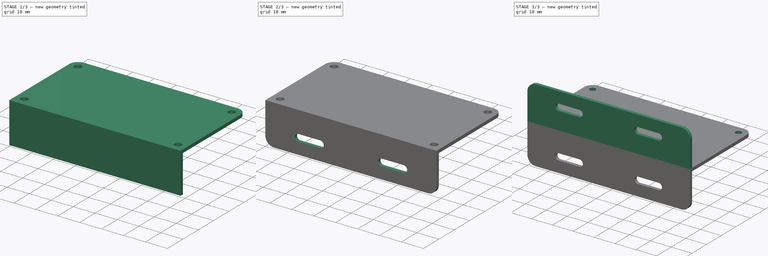
[diagram: build sequence overview — one tinted view per stage of 3, left to right]
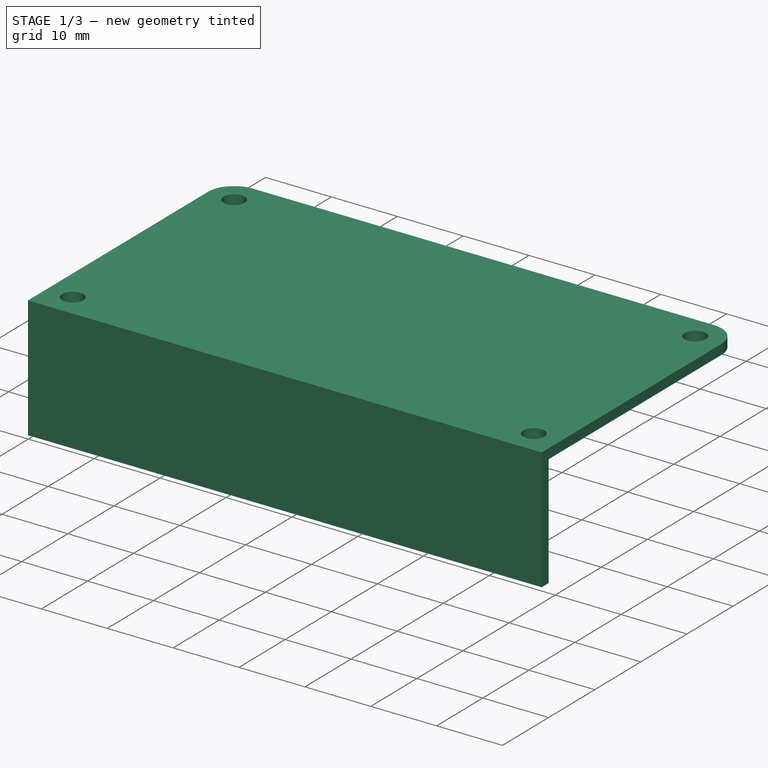
[diagram: stage 1 of 3 — iso view after this stage's code; geometry added in this stage tinted green]
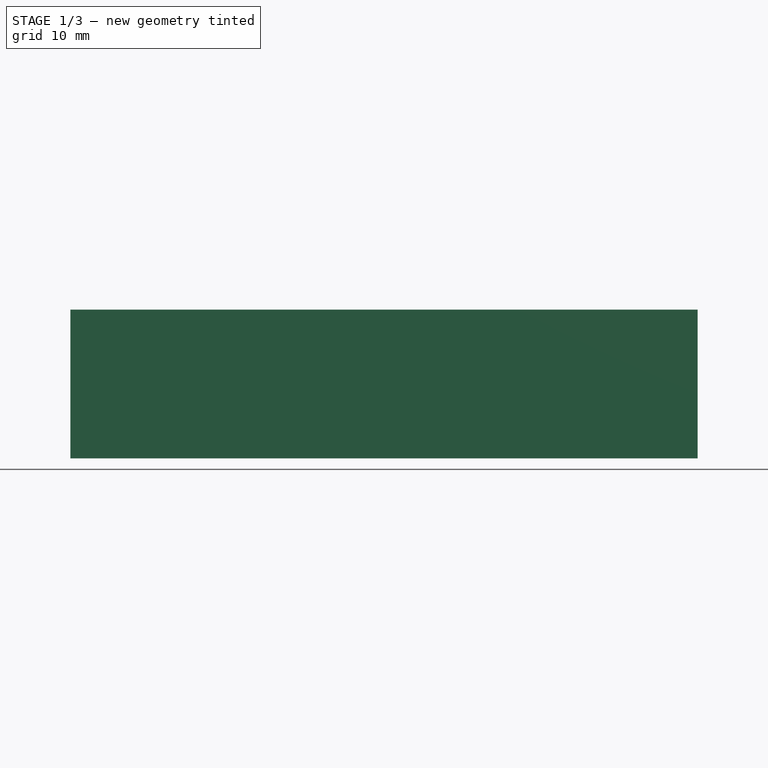
[diagram: stage 1 of 3 — front view after this stage's code; geometry added in this stage tinted green]
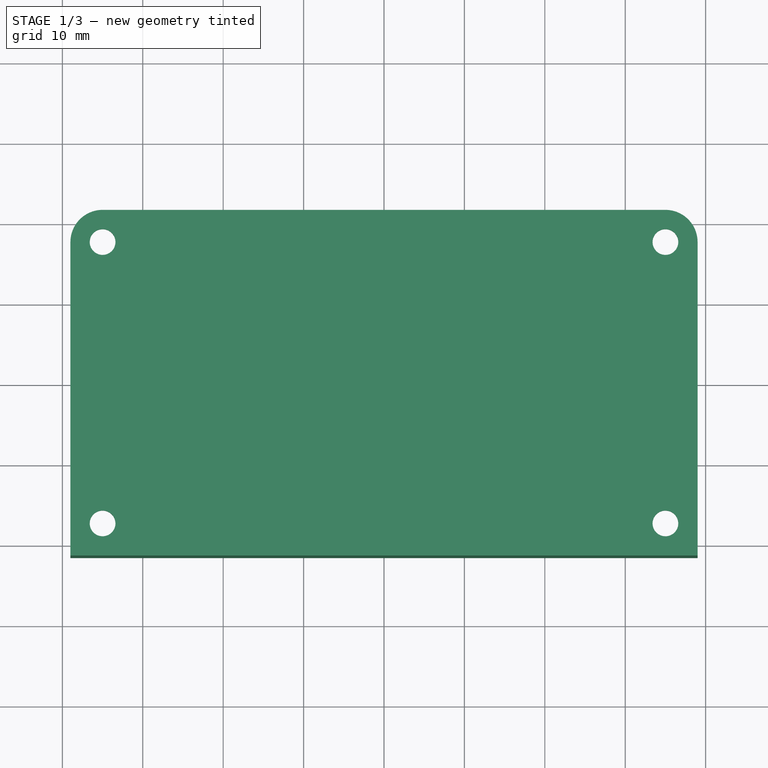
[diagram: stage 1 of 3 — top view after this stage's code; geometry added in this stage tinted green]
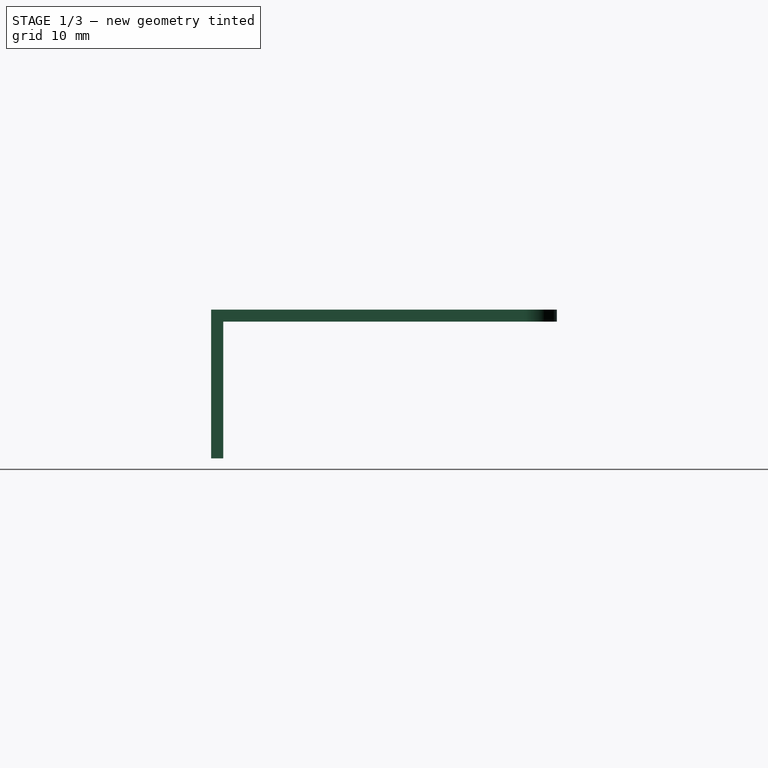
[diagram: stage 1 of 3 — right view after this stage's code; geometry added in this stage tinted green]
FCSTD DOCUMENT  (FreeCAD 0.20R29410 (Git))
Label: CapKorea
License: All rights reserved
LicenseURL: http://en.wikipedia.org/wiki/All_rights_reserved
objects: Part::Feature×16, Sketcher::SketchObject×5, PartDesign::Pad×4, App::Part×2, PartDesign::Body×2, App::FeaturePython×1, PartDesign::Pocket×1, PartDesign::Fillet×1, TechDraw::DrawSVGTemplate×1, TechDraw::DrawViewPart×1, TechDraw::DrawPage×1
note: 36 computed .brp shape members not serialized (recipe doc carries the construction recipe); baked Part::Feature solids carry a one-line shape summary decoded from their .brp

FEATURE [PartDesign::Body] Body  label="BodyFrontCap"
  Group = -> [Sketch004,Pad,Sketch009,Pad004]
  Origin = -> Origin
  Tip = -> Pad004
FEATURE [App::FeaturePython] WPProxy  # WARN: FeaturePython — macro-defined, semantics opaque (R4)
  Placement = pos=(0,0,1.5) rot=(-0.441748,-0.893536,-0.080318;0rad)
FEATURE [PartDesign::Pad] Pad007
  Direction = (0,0,1)
  Length = 1.5
  Length2 = 10
  Profile = -> Sketch006
  ReferenceAxis = -> Sketch006 [N_Axis]
  Type = 0
FEATURE [Sketcher::SketchObject] Sketch
  ExternalGeometry = -> [Pad007]
  FullyConstrained = true
  MapMode = 5
  Support = -> [XY_Plane001]
  sketch-geometry (4):
    g0: LineSegment StartX=-39 StartY=-21.5 StartZ=0 EndX=39 EndY=-21.5 EndZ=0
    g1: LineSegment StartX=39 StartY=-21.5 StartZ=0 EndX=39 EndY=-20 EndZ=0
    g2: LineSegment StartX=39 StartY=-20 StartZ=0 EndX=-39 EndY=-20 EndZ=0
    g3: LineSegment StartX=-39 StartY=-20 StartZ=0 EndX=-39 EndY=-21.5 EndZ=0
  constraints (11):
    c: Coincident(g0,g1)
    c: Coincident(g1,g2)
    c: Coincident(g2,g3)
    c: Coincident(g3,g0)
    c: Horizontal(g0)
    c: Horizontal(g2)
    c: Vertical(g1)
    c: Vertical(g3)
    c: Coincident(g0,g-3)
    c: PointOnObject(g1,g-4)
    c: DistanceY(g0,g1) = 1.5
FEATURE [PartDesign::Pad] Pad008
  BaseFeature = -> Pad007
  Direction = (0,0,1)
  Length = 17
  Length2 = 10
  Profile = -> Sketch
  ReferenceAxis = -> Sketch [N_Axis]
  Reversed = true
  Type = 0
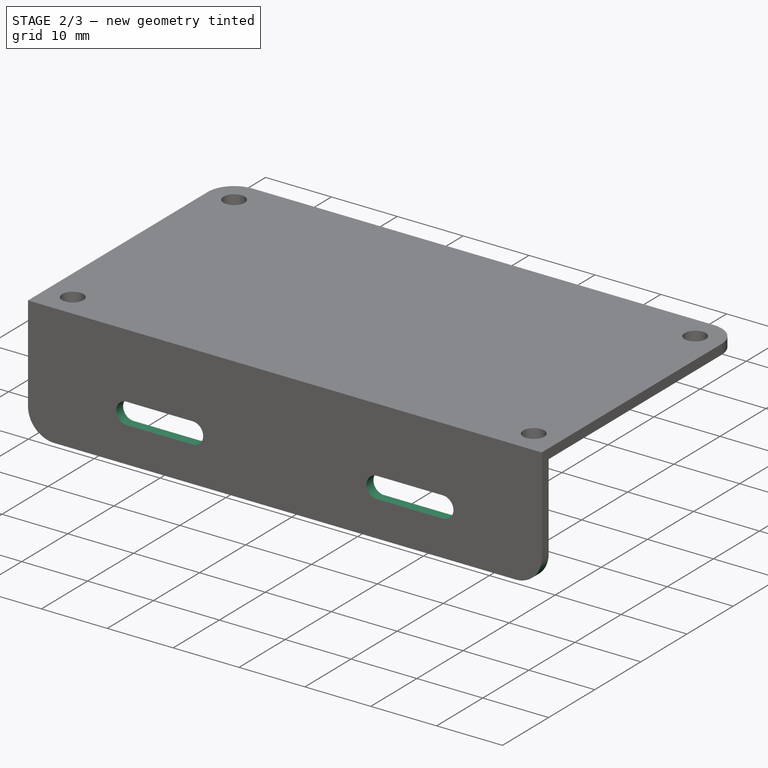
[diagram: stage 2 of 3 — iso view after this stage's code; geometry added in this stage tinted green]
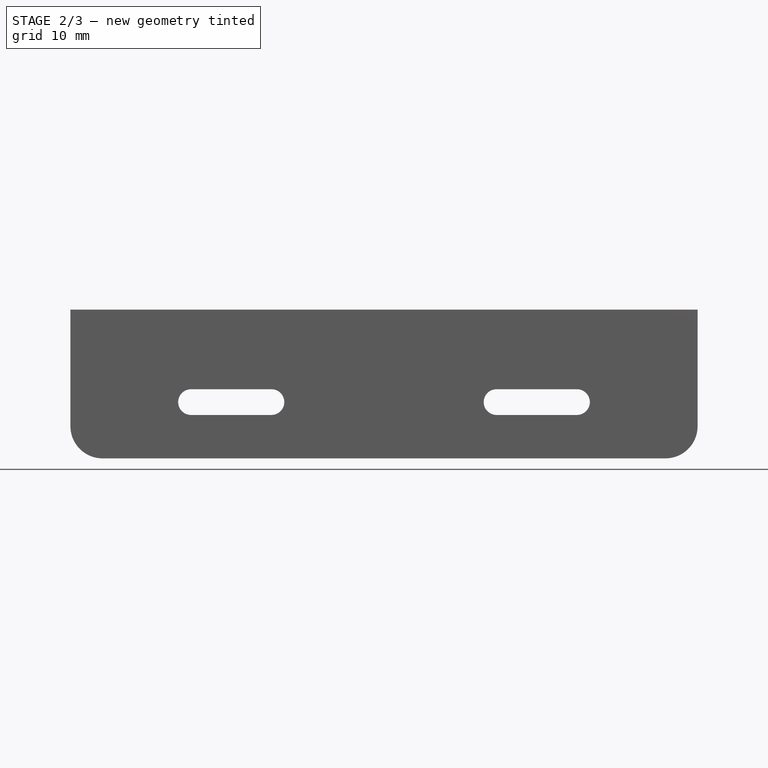
[diagram: stage 2 of 3 — front view after this stage's code; geometry added in this stage tinted green]
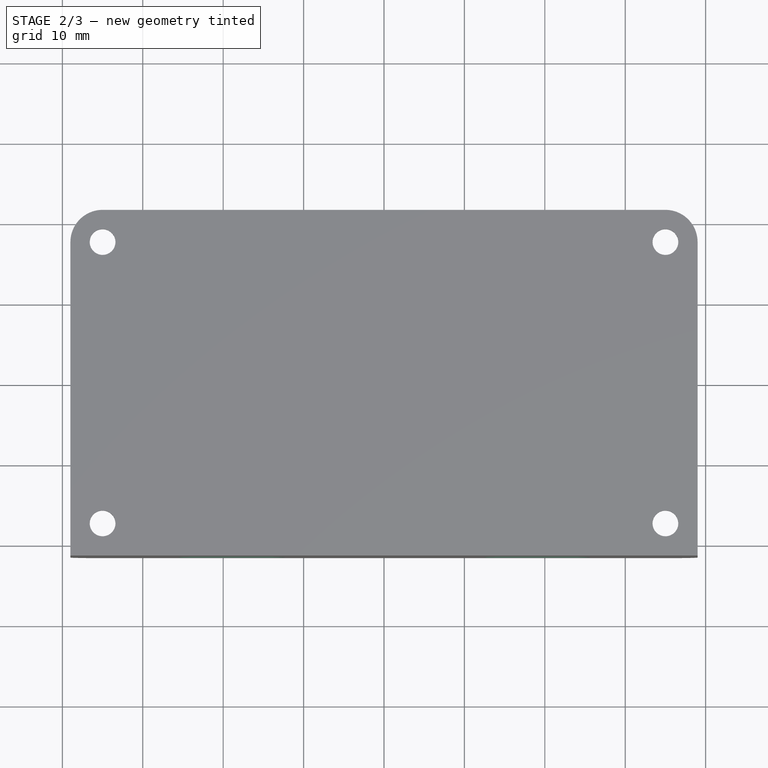
[diagram: stage 2 of 3 — top view after this stage's code; geometry added in this stage tinted green]
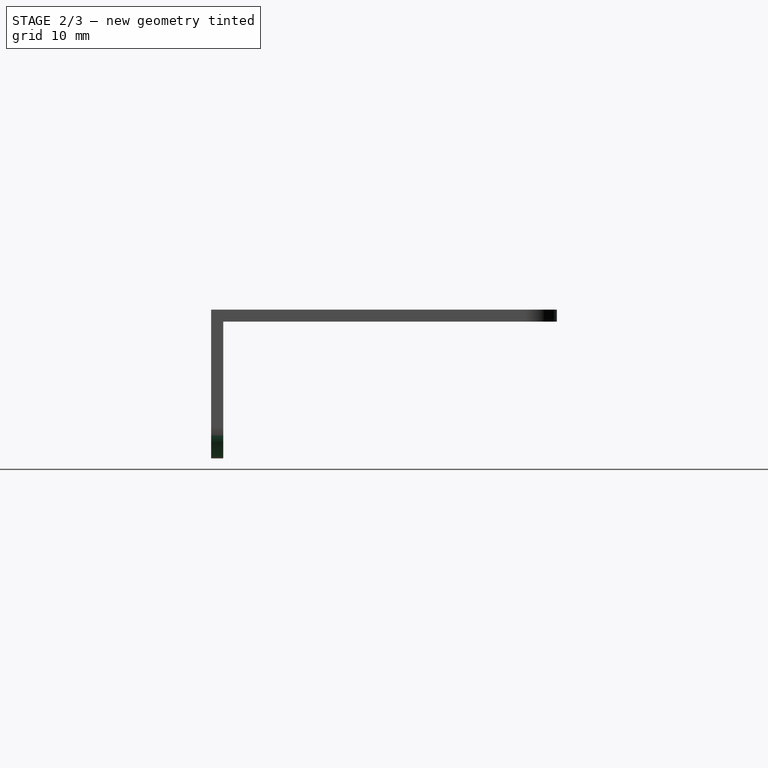
[diagram: stage 2 of 3 — right view after this stage's code; geometry added in this stage tinted green]
FEATURE [Sketcher::SketchObject] Sketch012
  ExternalGeometry = -> [Pad008]
  FullyConstrained = true
  MapMode = 5
  Placement = pos=(0,-20,0) rot=(0,0.707107,0.707107;3.14159rad)
  Support = -> [Pad008]
  sketch-geometry (8):
    g0: ArcOfCircle CenterX=-24 CenterY=-10 CenterZ=0 NormalX=0 NormalY=0 NormalZ=1 AngleXU=0 Radius=1.6 StartAngle=1.5708 EndAngle=4.71239
    g1: ArcOfCircle CenterX=-14 CenterY=-10 CenterZ=0 NormalX=0 NormalY=0 NormalZ=1 AngleXU=0 Radius=1.6 StartAngle=4.71239 EndAngle=7.85398
    g2: LineSegment StartX=-24 StartY=-11.6 StartZ=0 EndX=-14 EndY=-11.6 EndZ=0
    g3: LineSegment StartX=-14 StartY=-8.4 StartZ=0 EndX=-24 EndY=-8.4 EndZ=0
    g4: ArcOfCircle CenterX=24 CenterY=-10 CenterZ=0 NormalX=0 NormalY=0 NormalZ=1 AngleXU=0 Radius=1.6 StartAngle=4.71239 EndAngle=7.85398
    g5: ArcOfCircle CenterX=14 CenterY=-10 CenterZ=0 NormalX=0 NormalY=0 NormalZ=1 AngleXU=0 Radius=1.6 StartAngle=1.5708 EndAngle=4.71239
    g6: LineSegment StartX=24 StartY=-11.6 StartZ=0 EndX=14 EndY=-11.6 EndZ=0
    g7: LineSegment StartX=14 StartY=-8.4 StartZ=0 EndX=24 EndY=-8.4 EndZ=0
  constraints (20):
    c: Tangent(g0,g2) = -1.5708
    c: Tangent(g2,g1) = -1.5708
    c: Tangent(g1,g3) = -1.5708
    c: Tangent(g3,g0) = -1.5708
    c: Equal(g0,g1)
    c: Horizontal(g2)
    c: DistanceX(g0,g1) = 10
    c: Diameter(g1) = 3.2
    c: DistanceY(g0,g-4) = 10
    c: DistanceX(g-4,g0) = 15
    c: Tangent(g4,g6) = 1.5708
    c: Tangent(g6,g5) = 1.5708
    c: Tangent(g5,g7) = 1.5708
    c: Tangent(g7,g4) = 1.5708
    c: Equal(g4,g5)
    c: Horizontal(g6)
    c: Diameter(g5) = 3.2
    c: DistanceX(g5,g4) = 10
    c: DistanceX(g4,g-6) = 15
    c: DistanceY(g4,g-6) = 10
FEATURE [PartDesign::Pocket] Pocket
  BaseFeature = -> Pad008
  Direction = (0,-1,2e-16)
  Length = 5
  Length2 = 5
  Profile = -> Sketch012
  ReferenceAxis = -> Sketch012 [N_Axis]
  Type = 1
FEATURE [PartDesign::Fillet] Fillet
  Base = -> Pocket [Edge22,Edge57]
  BaseFeature = -> Pocket
  Radius = 4
  SupportTransform = false
  UseAllEdges = false
FEATURE [PartDesign::Body] Body001  label="BodyBackCap"
  Group = -> [Sketch006,Pad007,Sketch,Pad008,Sketch012,Pocket,Fillet]
  Origin = -> Origin001
  Placement = pos=(0,0,65.5) rot=(0,0,1;0rad)
  Tip = -> Fillet
FEATURE [Part::Feature] Part__Feature014  label="Pad009"
  Placement = pos=(0,0,24) rot=(0,0,1;3.14159rad)
  shape: bbox 78 x 43 x 18.5 mm, 43 faces (baked)
FEATURE [Part::Feature] Part__Feature015  label="Fillet001"
  shape: bbox 78 x 43 x 18.5 mm, 27 faces (baked)
FEATURE [TechDraw::DrawSVGTemplate] Template
  Height = 297
  Orientation = 0
  Width = 210
FEATURE [TechDraw::DrawViewPart] View
  CoarseView = false
  Direction = (0,0,1)
  Focus = 100
  HardHidden = false
  IsoCount = 0
  IsoHidden = false
  IsoVisible = false
  LockPosition = false
  Perspective = false
  Rotation = 0
  ScaleType = 0
  SeamHidden = false
  SeamVisible = true
  SmoothHidden = false
  SmoothVisible = true
  Source = -> [Part__Feature014]
  X = 105
  XDirection = (-1,0,0)
  Y = 148.5
FEATURE [TechDraw::DrawPage] Page
  KeepUpdated = true
  NextBalloonIndex = 1
  ProjectionType = 0
  Template = -> Template
  Views = -> [View]
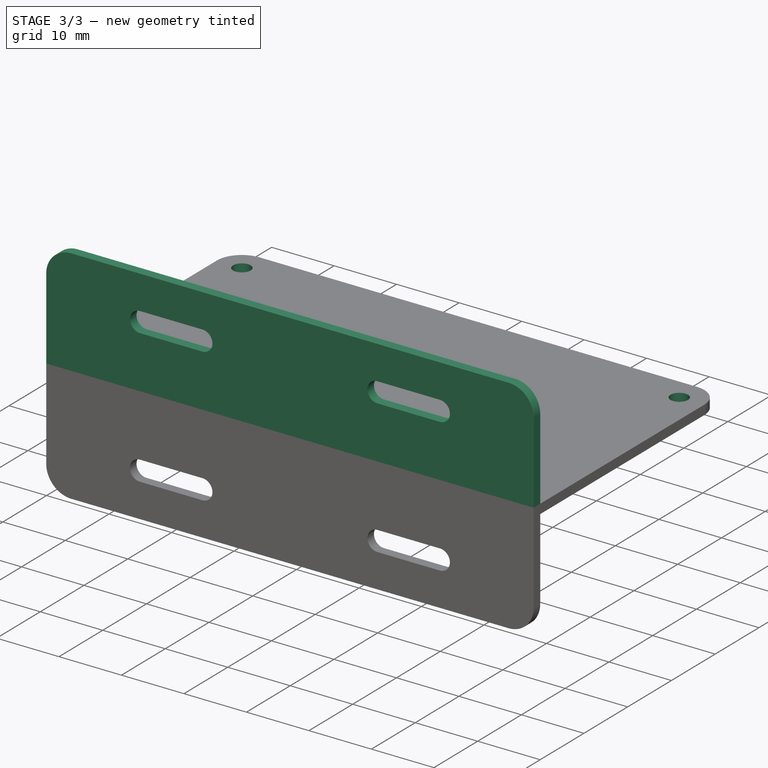
[diagram: stage 3 of 3 — iso view after this stage's code; geometry added in this stage tinted green]
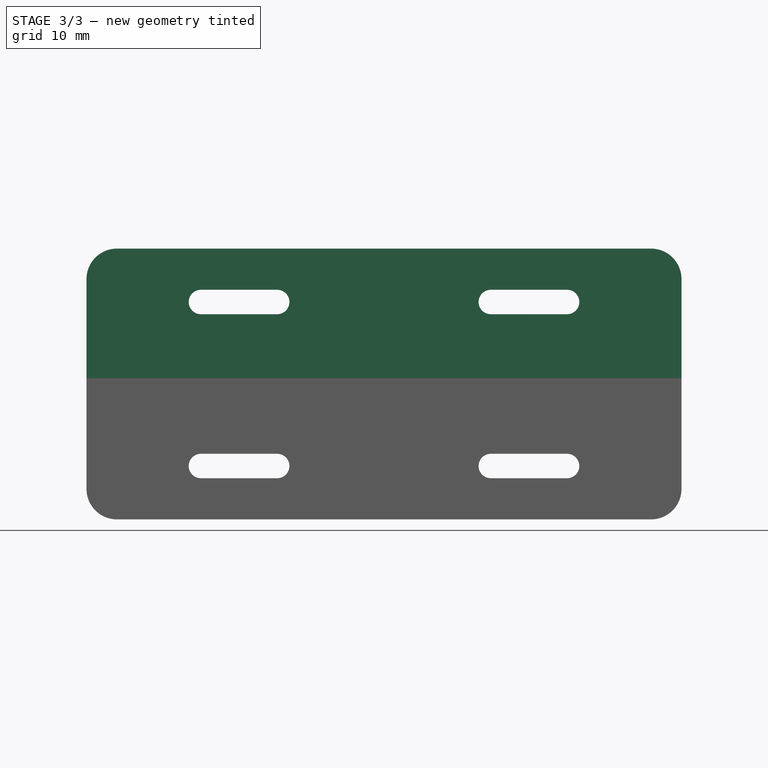
[diagram: stage 3 of 3 — front view after this stage's code; geometry added in this stage tinted green]
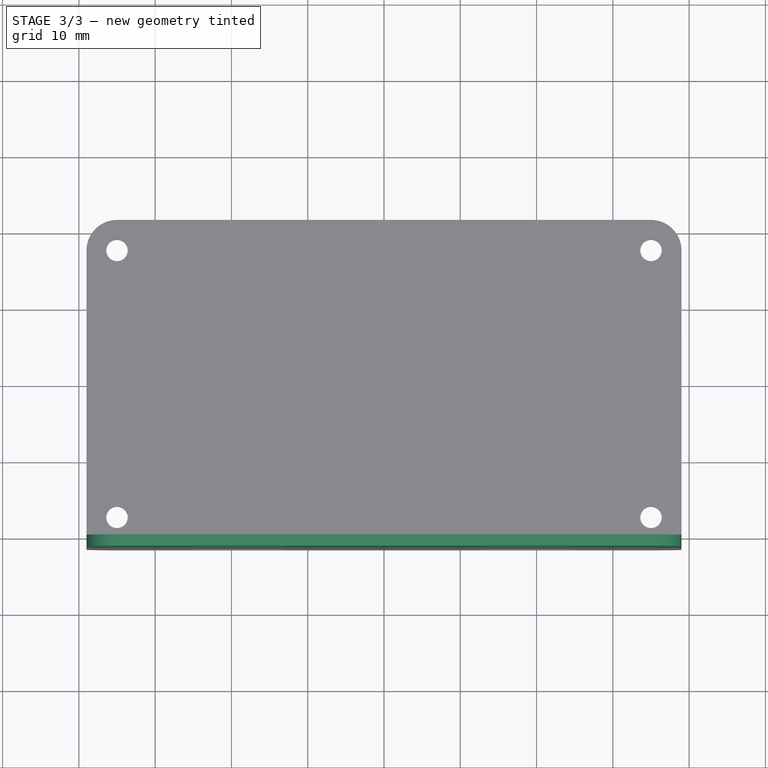
[diagram: stage 3 of 3 — top view after this stage's code; geometry added in this stage tinted green]
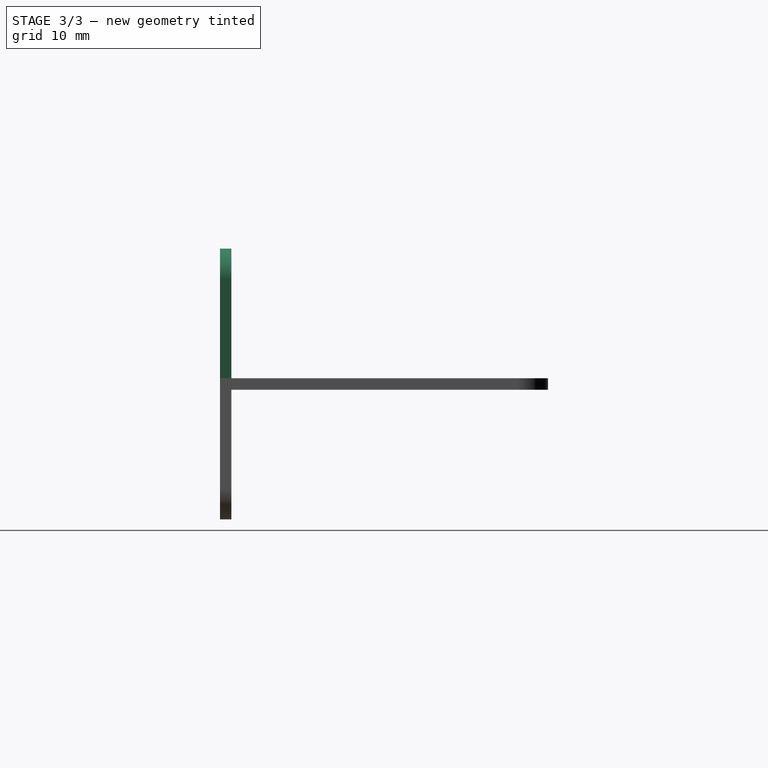
[diagram: stage 3 of 3 — right view after this stage's code; geometry added in this stage tinted green]
FEATURE [Sketcher::SketchObject] Sketch004
  FullyConstrained = false
  MapMode = 5
  sketch-geometry (48):
    g0: LineSegment StartX=-35 StartY=21.5 StartZ=0 EndX=35 EndY=21.5 EndZ=0
    g1: ArcOfCircle CenterX=35 CenterY=17.5 CenterZ=0 NormalX=0 NormalY=0 NormalZ=1 AngleXU=0 Radius=4 StartAngle=0 EndAngle=1.5708
    g2: ArcOfCircle CenterX=-35 CenterY=17.5 CenterZ=0 NormalX=0 NormalY=0 NormalZ=1 AngleXU=0 Radius=4 StartAngle=1.5708 EndAngle=3.14159
    g3: Circle CenterX=-35 CenterY=-17.5 CenterZ=0 NormalX=0 NormalY=0 NormalZ=1 AngleXU=0 Radius=1.4
    g4: Circle CenterX=35 CenterY=17.5 CenterZ=0 NormalX=0 NormalY=0 NormalZ=1 AngleXU=0 Radius=1.4
    g5: Circle CenterX=35 CenterY=-17.5 CenterZ=0 NormalX=0 NormalY=0 NormalZ=1 AngleXU=0 Radius=1.4
    g6: Circle CenterX=-35 CenterY=17.5 CenterZ=0 NormalX=0 NormalY=0 NormalZ=1 AngleXU=0 Radius=1.4
    g7: LineSegment StartX=22.5 StartY=-2.5 StartZ=0 EndX=30.2 EndY=-2.5 EndZ=0
    g8: LineSegment StartX=31 StartY=-3.3 StartZ=0 EndX=31 EndY=-6.2 EndZ=0
    g9: LineSegment StartX=30.2 StartY=-7 StartZ=0 EndX=22.5 EndY=-7 EndZ=0
    g10: LineSegment StartX=21.7 StartY=-6.2 StartZ=0 EndX=21.7 EndY=-3.3 EndZ=0
    g11: Circle CenterX=-4 CenterY=2.5 CenterZ=0 NormalX=0 NormalY=0 NormalZ=1 AngleXU=0 Radius=1.5
    g12: Circle CenterX=4 CenterY=2.5 CenterZ=0 NormalX=0 NormalY=0 NormalZ=1 AngleXU=0 Radius=1.5
    g13: LineSegment StartX=-39 StartY=-21.5 StartZ=0 EndX=39 EndY=-21.5 EndZ=0
    g14: LineSegment StartX=-39 StartY=17.5 StartZ=0 EndX=-39 EndY=-21.5 EndZ=0
    g15: LineSegment StartX=39 StartY=17.5 StartZ=0 EndX=39 EndY=-21.5 EndZ=0
    g16: LineSegment StartX=-36.7881 StartY=-1.88912 StartZ=0 EndX=37.4083 EndY=-1.88912 EndZ=0
    g17: LineSegment StartX=37.4083 StartY=-1.88912 StartZ=0 EndX=37.4083 EndY=-0.889117 EndZ=0
    g18: LineSegment StartX=37.4083 StartY=-0.889117 StartZ=0 EndX=-36.7881 EndY=-0.889117 EndZ=0
    g19: LineSegment StartX=-36.7881 StartY=-0.889117 StartZ=0 EndX=-36.7881 EndY=-1.88912 EndZ=0
    g20: LineSegment StartX=-36.9793 StartY=-12.5013 StartZ=0 EndX=37.1476 EndY=-12.5013 EndZ=0
    g21: LineSegment StartX=37.1476 StartY=-12.5013 StartZ=0 EndX=37.1476 EndY=-11.5013 EndZ=0
    g22: LineSegment StartX=-36.9793 StartY=-11.5013 StartZ=0 EndX=-36.9793 EndY=-12.5013 EndZ=0
    g23: LineSegment StartX=-37.0037 StartY=12.1348 StartZ=0 EndX=37.1927 EndY=12.1348 EndZ=0
    g24: LineSegment StartX=37.1927 StartY=12.1348 StartZ=0 EndX=37.1927 EndY=13.1348 EndZ=0
    g25: LineSegment StartX=37.1927 StartY=13.1348 StartZ=0 EndX=-37.0037 EndY=13.1348 EndZ=0
    g26: LineSegment StartX=-37.0037 StartY=13.1348 StartZ=0 EndX=-37.0037 EndY=12.1348 EndZ=0
    g27: LineSegment StartX=-39 StartY=-21.5 StartZ=0 EndX=39.1164 EndY=-21.5 EndZ=0
    g28: LineSegment StartX=39.1164 StartY=-21.5 StartZ=0 EndX=39.1164 EndY=-20 EndZ=0
    g29: LineSegment StartX=39.1164 StartY=-20 StartZ=0 EndX=-39 EndY=-20 EndZ=0
    g30: LineSegment StartX=-39 StartY=-20 StartZ=0 EndX=-39 EndY=-21.5 EndZ=0
    g31: LineSegment StartX=39.0226 StartY=0.5 StartZ=0 EndX=39.0226 EndY=0.5 EndZ=0
    g32: LineSegment StartX=-38.9117 StartY=-0.2 StartZ=0 EndX=-38.9117 EndY=0.5 EndZ=0
    g33: LineSegment StartX=-38.9117 StartY=-0.2 StartZ=0 EndX=39 EndY=-0.2 EndZ=0
    g34: LineSegment StartX=39 StartY=-0.2 StartZ=0 EndX=39 EndY=0.3 EndZ=0
    g35: LineSegment StartX=39 StartY=0.3 StartZ=0 EndX=-38.9117 EndY=0.3 EndZ=0
    g36: LineSegment StartX=-38.9117 StartY=0.3 StartZ=0 EndX=-38.9117 EndY=-0.2 EndZ=0
    g37: ArcOfCircle CenterX=22.5 CenterY=-3.3 CenterZ=0 NormalX=0 NormalY=0 NormalZ=1 AngleXU=0 Radius=0.8 StartAngle=1.5708 EndAngle=3.14159
    g38: ArcOfCircle CenterX=30.2 CenterY=-3.3 CenterZ=0 NormalX=0 NormalY=0 NormalZ=1 AngleXU=0 Radius=0.8 StartAngle=0 EndAngle=1.5708
    g39: ArcOfCircle CenterX=22.5 CenterY=-6.2 CenterZ=0 NormalX=0 NormalY=0 NormalZ=1 AngleXU=0 Radius=0.8 StartAngle=3.14159 EndAngle=4.71239
    g40: ArcOfCircle CenterX=30.2 CenterY=-6.2 CenterZ=0 NormalX=0 NormalY=0 NormalZ=1 AngleXU=0 Radius=0.8 StartAngle=4.71239 EndAngle=6.28319
    g41: ArcOfCircle CenterX=-20.5 CenterY=-8.4 CenterZ=0 NormalX=0 NormalY=0 NormalZ=1 AngleXU=0 Radius=1.6 StartAngle=1.5708 EndAngle=4.05132
    g42: LineSegment StartX=-20.5 StartY=-6.8 StartZ=0 EndX=-15.5 EndY=-6.8 EndZ=0
    g43: ArcOfCircle CenterX=-15.5 CenterY=-8.4 CenterZ=0 NormalX=0 NormalY=0 NormalZ=1 AngleXU=0 Radius=1.6 StartAngle=5.37346 EndAngle=7.85398
    g44: GeomPoint X=-2.44866 Y=-9.56473 Z=0
    g45: ArcOfCircle CenterX=-19.9 CenterY=-9.9 CenterZ=0 NormalX=0 NormalY=0 NormalZ=1 AngleXU=0 Radius=1.6 StartAngle=2.99288 EndAngle=4.71239
    g46: ArcOfCircle CenterX=-16.1 CenterY=-9.9 CenterZ=0 NormalX=0 NormalY=0 NormalZ=1 AngleXU=0 Radius=1.6 StartAngle=4.71239 EndAngle=6.4319
    g47: LineSegment StartX=-19.9 StartY=-11.5 StartZ=0 EndX=-16.1 EndY=-11.5 EndZ=0
  constraints (121):
    c: Coincident(g2,g0)
    c: Coincident(g0,g1)
    c: Equal(g2,g1)
    c: Equal(g4,g5)
    c: Radius(g2) = 4
    c: Diameter(g6) = 2.8
    c: Equal(g5,g3)
    c: Horizontal(g7)
    c: Horizontal(g9)
    c: Vertical(g8)
    c: Vertical(g10)
    c: Diameter(g12) = 3
    c: Equal(g12,g11)
    c: DistanceX(g11,g12) = 8
    c: DistanceX(g12,g1) = 35
    c: Horizontal(g11,g12)
    c: Coincident(g6,g2)
    c: Vertical(g2,g0)
    c: Horizontal(g2,g2)
    c: Coincident(g4,g1)
    c: Vertical(g0,g1)
    c: Horizontal(g1,g1)
    c: Equal(g6,g3)
    c: DistanceY(g3,g2) = 35
    c: Horizontal(g3,g5)
    c: Vertical(g1,g5)
    c: Horizontal(g13)
    c: Coincident(g14,g2)
    c: Coincident(g14,g13)
    c: Vertical(g14)
    c: Coincident(g15,g1)
    c: Coincident(g15,g13)
    c: Vertical(g15)
    c: DistanceY(g13,g0) = 43
    c: Symmetric(g2,g3,g-1)
    c: Symmetric(g2,g1,g-2)
    c: DistanceX(g13,g13) = 78
    c: Coincident(g16,g17)
    c: Coincident(g17,g18)
    c: Coincident(g18,g19)
    c: Coincident(g19,g16)
    c: Horizontal(g16)
    c: Horizontal(g18)
    c: Vertical(g17)
    c: Vertical(g19)
    c: DistanceY(g16,g18) = 1
    c: Coincident(g20,g21)
    c: Coincident(g22,g20)
    c: Horizontal(g20)
    c: Vertical(g21)
    c: Vertical(g22)
    c: Coincident(g23,g24)
    c: Coincident(g24,g25)
    c: Coincident(g25,g26)
    c: Coincident(g26,g23)
    c: Horizontal(g23)
    c: Horizontal(g25)
    c: Vertical(g24)
    c: Vertical(g26)
    c: DistanceY(g23,g25) = 1
    c: DistanceY(g20,g22) = 1
    c: Coincident(g27,g28)
    c: Coincident(g28,g29)
    c: Coincident(g29,g30)
    c: Coincident(g30,g27)
    c: Horizontal(g27)
    c: Horizontal(g29)
    c: Vertical(g28)
    c: Vertical(g30)
    c: Coincident(g27,g13)
    c: DistanceY(g13,g28) = 1.5
    c: Vertical(g31)
    c: Vertical(g32)
    c: Coincident(g33,g34)
    c: Coincident(g34,g35)
    c: Coincident(g35,g36)
    c: Coincident(g36,g33)
    c: Horizontal(g33)
    c: Horizontal(g35)
    c: Vertical(g34)
    c: Vertical(g36)
    c: Coincident(g33,g32)
    c: PointOnObject(g34,g15)
    c: DistanceY(g32,g35) = 0.5
    c: DistanceY(g35,g0) = 21.2
    c: DistanceY(g13,g11) = 24
    c: Tangent(g10,g37) = 1.5708
    c: Tangent(g7,g37) = 1.5708
    c: Tangent(g7,g38) = 1.5708
    c: Tangent(g8,g38) = 1.5708
    c: Tangent(g10,g39) = 1.5708
    c: Tangent(g9,g39) = 1.5708
    c: Tangent(g8,g40) = 1.5708
    c: Tangent(g9,g40) = 1.5708
    c: Radius(g37) = 0.8
    c: DistanceX(g10,g8) = 9.3
    c: DistanceY(g9,g7) = 4.5
    c: Equal(g37,g38)
    c: Equal(g38,g40)
    c: Equal(g40,g39)
    c: DistanceY(g13,g9) = 14.5
    c: DistanceX(g8,g13) = 8
    c: Tangent(g41,g42) = 1.5708
    c: Tangent(g42,g43) = 1.5708
    c: Horizontal(g42)
    c: Equal(g41,g43)
    c: Radius(g43) = 1.6
    c: Coincident(g45,g41)
    c: Coincident(g46,g43)
    c: Equal(g45,g46)
    c: Radius(g45) = 1.6
    c: Horizontal(g41,g43)
    c: DistanceY(g45,g41) = 4.7
    c: Coincident(g47,g45)
    c: Horizontal(g47)
    c: DistanceX(g45,g46) = 3.8
    c: DistanceX(g41,g42) = 5
    c: Tangent(g47,g46) = -1.5708
    c: Tangent(g45,g47) = -1.5708
    c: DistanceY(g13,g46) = 10
    c: DistanceX(g13,g41) = 18.5
FEATURE [Sketcher::SketchObject] Sketch006
  FullyConstrained = true
  MapMode = 5
  Support = -> [XY_Plane001]
  sketch-geometry (10):
    g0: LineSegment StartX=-35 StartY=21.5 StartZ=0 EndX=35 EndY=21.5 EndZ=0
    g1: ArcOfCircle CenterX=35 CenterY=17.5 CenterZ=0 NormalX=0 NormalY=0 NormalZ=1 AngleXU=0 Radius=4 StartAngle=0 EndAngle=1.5708
    g2: ArcOfCircle CenterX=-35 CenterY=17.5 CenterZ=0 NormalX=0 NormalY=0 NormalZ=1 AngleXU=0 Radius=4 StartAngle=1.5708 EndAngle=3.14159
    g3: Circle CenterX=-35 CenterY=-17.5 CenterZ=0 NormalX=0 NormalY=0 NormalZ=1 AngleXU=0 Radius=1.6
    g4: Circle CenterX=35 CenterY=17.5 CenterZ=0 NormalX=0 NormalY=0 NormalZ=1 AngleXU=0 Radius=1.6
    g5: Circle CenterX=35 CenterY=-17.5 CenterZ=0 NormalX=0 NormalY=0 NormalZ=1 AngleXU=0 Radius=1.6
    g6: Circle CenterX=-35 CenterY=17.5 CenterZ=0 NormalX=0 NormalY=0 NormalZ=1 AngleXU=0 Radius=1.6
    g7: LineSegment StartX=-39 StartY=17.5 StartZ=0 EndX=-39 EndY=-21.5 EndZ=0
    g8: LineSegment StartX=-39 StartY=-21.5 StartZ=0 EndX=39 EndY=-21.5 EndZ=0
    g9: LineSegment StartX=39 StartY=-21.5 StartZ=0 EndX=39 EndY=17.5 EndZ=0
  constraints (28):
    c: Vertical(g2,g3)
    c: Horizontal(g2,g2)
    c: Horizontal(g2,g1)
    c: Horizontal(g1,g1)
    c: DistanceY(g7,g0) = 43
    c: DistanceX(g7,g8) = 78
    c: Tangent(g0,g2) = 1.5708
    c: Tangent(g0,g1) = 1.5708
    c: Coincident(g2,g7)
    c: Vertical(g7)
    c: Vertical(g9)
    c: Horizontal(g8)
    c: Coincident(g7,g8)
    c: Coincident(g8,g9)
    c: Coincident(g9,g1)
    c: Coincident(g6,g2)
    c: Coincident(g4,g1)
    c: Coincident(g0,g1)
    c: Radius(g2) = 4
    c: Equal(g2,g1)
    c: Coincident(g2,g0)
    c: DistanceY(g3,g2) = 35
    c: Symmetric(g3,g5,g-2)
    c: Symmetric(g1,g5,g-1)
    c: Diameter(g6) = 3.2
    c: Equal(g6,g4)
    c: Equal(g4,g5)
    c: Equal(g5,g3)
FEATURE [Part::Feature] Part__Feature  label="K Channel Extrusion 120mm"
  Placement = pos=(-53.3672,-0.0661121,25.878) rot=(0.616631,0.616807,0.489199;2.22771rad)
  shape: bbox 126.7 x 78.35 x 69.12 mm, 294 faces (baked)
FEATURE [Part::Feature] Part__Feature001  label="K Cap Extrusion 120mm"
  Placement = pos=(-60,4.5e-14,-43.02) rot=(0.57735,0.57735,0.57735;2.0944rad)
  shape: bbox 120 x 66.9 x 4.29 mm, 26 faces (baked)
FEATURE [App::Part] _455K_Channel_and_Cover_120mm  label="1455K Channel and Cover 120mm"
  Group = -> [Part__Feature,Part__Feature001]
  Origin = -> Origin003
FEATURE [Part::Feature] Part__Feature002  label="K Bezel Open"
  Placement = pos=(60,-4.18e-13,-21.51) rot=(-0.57735,0.57735,-0.57735;2.0944rad)
  shape: bbox 9 x 82.04 x 47.04 mm, 80 faces (baked)
FEATURE [Part::Feature] Part__Feature003  label="K Bezel Open001"
  Placement = pos=(-60,-5.23e-13,-21.51) rot=(0.57735,-0.57735,-0.57735;2.0944rad)
  shape: bbox 9 x 82.04 x 47.04 mm, 80 faces (baked)
FEATURE [Part::Feature] Part__Feature004  label="K End Plate"
  Placement = pos=(61.4,-4.18e-13,-21.51) rot=(0.57735,0.57735,0.57735;2.0944rad)
  shape: bbox 1.5 x 77.98 x 42.93 mm, 18 faces (baked)
FEATURE [Part::Feature] Part__Feature005  label="K End Plate001"
  Placement = pos=(-61.4,0.042,-21.24) rot=(0.57735,0.57735,-0.57735;4.18879rad)
  shape: bbox 1.5 x 77.98 x 42.93 mm, 18 faces (baked)
FEATURE [Part::Feature] Part__Feature006  label="1455 screw"
  Placement = pos=(-62.9,-35.01,-39.02) rot=(0,1,0;1.5708rad)
  shape: bbox 8 x 5.5 x 5.5 mm, 18 faces (baked)
FEATURE [Part::Feature] Part__Feature007  label="1455 screw001"
  Placement = pos=(-62.9,-35.01,-3.46) rot=(0,1,0;1.5708rad)
  shape: bbox 8 x 5.5 x 5.5 mm, 18 faces (baked)
FEATURE [Part::Feature] Part__Feature008  label="1455 screw002"
  Placement = pos=(-62.9,35.094,-39.02) rot=(0,1,0;1.5708rad)
  shape: bbox 8 x 5.5 x 5.5 mm, 18 faces (baked)
FEATURE [Part::Feature] Part__Feature009  label="1455 screw003"
  Placement = pos=(-62.9,35.094,-3.46) rot=(0,1,0;1.5708rad)
  shape: bbox 8 x 5.5 x 5.5 mm, 18 faces (baked)
FEATURE [Part::Feature] Part__Feature010  label="1455 screw004"
  Placement = pos=(62.9,-35.052,-3.73) rot=(0.570107,-0.59157,-0.570107;2.0732rad)
  shape: bbox 8 x 5.5 x 5.5 mm, 18 faces (baked)
FEATURE [Part::Feature] Part__Feature011  label="1455 screw005"
  Placement = pos=(62.9,35.052,-3.73) rot=(0.570107,-0.59157,-0.570107;2.0732rad)
  shape: bbox 8 x 5.5 x 5.5 mm, 18 faces (baked)
FEATURE [Part::Feature] Part__Feature012  label="1455 screw006"
  Placement = pos=(62.9,-35.052,-39.29) rot=(0.570107,-0.59157,-0.570107;2.0732rad)
  shape: bbox 8 x 5.5 x 5.5 mm, 18 faces (baked)
FEATURE [Part::Feature] Part__Feature013  label="1455 screw007"
  Placement = pos=(62.9,35.052,-39.29) rot=(0.570107,-0.59157,-0.570107;2.0732rad)
  shape: bbox 8 x 5.5 x 5.5 mm, 18 faces (baked)
FEATURE [App::Part] _455K1201  label="1455K1201"
  Group = -> [_455K_Channel_and_Cover_120mm,Part__Feature002,Part__Feature003,Part__Feature004,Part__Feature005,Part__Feature006,Part__Feature007,Part__Feature008,Part__Feature009,Part__Feature010,Part__Feature011,Part__Feature012,Part__Feature013]
  Origin = -> Origin002
  Placement = pos=(2e-15,-8.57446,-1.97957) rot=(-0.616308,0.616308,-0.490234;4.0532rad)
FEATURE [PartDesign::Pad] Pad
  Direction = (0,0,1)
  Length = 1.5
  Length2 = 10
  Profile = -> Sketch004
  ReferenceAxis = -> Sketch004 [N_Axis]
  Type = 0
FEATURE [Sketcher::SketchObject] Sketch009
  FullyConstrained = true
  MapMode = 5
  Placement = pos=(0,-20,0) rot=(0,0.707107,0.707107;3.14159rad)
  sketch-geometry (14):
    g0: LineSegment StartX=-35 StartY=18.5 StartZ=0 EndX=35 EndY=18.5 EndZ=0
    g1: LineSegment StartX=39 StartY=14.5 StartZ=0 EndX=39 EndY=1.5 EndZ=0
    g2: LineSegment StartX=39 StartY=1.5 StartZ=0 EndX=-39 EndY=1.5 EndZ=0
    g3: LineSegment StartX=-39 StartY=1.5 StartZ=0 EndX=-39 EndY=14.5 EndZ=0
    g4: ArcOfCircle CenterX=-35 CenterY=14.5 CenterZ=0 NormalX=0 NormalY=0 NormalZ=1 AngleXU=0 Radius=4 StartAngle=1.5708 EndAngle=3.14159
    g5: ArcOfCircle CenterX=35 CenterY=14.5 CenterZ=0 NormalX=0 NormalY=0 NormalZ=1 AngleXU=0 Radius=4 StartAngle=1e-16 EndAngle=1.5708
    g6: ArcOfCircle CenterX=-24 CenterY=11.5 CenterZ=0 NormalX=0 NormalY=0 NormalZ=1 AngleXU=0 Radius=1.6 StartAngle=1.5708 EndAngle=4.71239
    g7: ArcOfCircle CenterX=-14 CenterY=11.5 CenterZ=0 NormalX=0 NormalY=0 NormalZ=1 AngleXU=0 Radius=1.6 StartAngle=4.71239 EndAngle=7.85398
    g8: LineSegment StartX=-24 StartY=9.9 StartZ=0 EndX=-14 EndY=9.9 EndZ=0
    g9: LineSegment StartX=-14 StartY=13.1 StartZ=0 EndX=-24 EndY=13.1 EndZ=0
    g10: ArcOfCircle CenterX=24 CenterY=11.5 CenterZ=0 NormalX=0 NormalY=0 NormalZ=1 AngleXU=0 Radius=1.6 StartAngle=4.71239 EndAngle=7.85398
    g11: ArcOfCircle CenterX=14 CenterY=11.5 CenterZ=0 NormalX=0 NormalY=0 NormalZ=1 AngleXU=0 Radius=1.6 StartAngle=1.5708 EndAngle=4.71239
    g12: LineSegment StartX=24 StartY=9.9 StartZ=0 EndX=14 EndY=9.9 EndZ=0
    g13: LineSegment StartX=14 StartY=13.1 StartZ=0 EndX=24 EndY=13.1 EndZ=0
  constraints (34):
    c: Coincident(g1,g2)
    c: Coincident(g2,g3)
    c: Horizontal(g0)
    c: Horizontal(g2)
    c: Vertical(g1)
    c: Vertical(g3)
    c: Tangent(g3,g4) = 1.5708
    c: Tangent(g0,g4) = 1.5708
    c: Tangent(g0,g5) = 1.5708
    c: Tangent(g1,g5) = 1.5708
    c: Radius(g4) = 4
    c: DistanceX(g3,g1) = 78
    c: DistanceY(g1,g0) = 17
    c: Tangent(g6,g8) = -1.5708
    c: Tangent(g8,g7) = -1.5708
    c: Tangent(g7,g9) = -1.5708
    c: Tangent(g9,g6) = -1.5708
    c: Equal(g6,g7)
    c: Radius(g7) = 1.6
    c: DistanceX(g6,g7) = 10
    c: DistanceX(g2,g6) = 15
    c: DistanceY(g2,g6) = 10
    c: Horizontal(g6,g7)
    c: Tangent(g10,g12) = 1.5708
    c: Tangent(g12,g11) = 1.5708
    c: Tangent(g11,g13) = 1.5708
    c: Tangent(g13,g10) = 1.5708
    c: Equal(g10,g11)
    c: Radius(g11) = 1.6
    c: DistanceX(g10,g1) = 15
    c: DistanceY(g1,g10) = 10
    c: Symmetric(g3,g1,g-2)
    c: Symmetric(g7,g11,g-2)
    c: DistanceY(g-1,g1) = 1.5
FEATURE [PartDesign::Pad] Pad004
  BaseFeature = -> Pad
  Direction = (0,1,-2e-16)
  Length = 1.5
  Length2 = 10
  Profile = -> Sketch009
  ReferenceAxis = -> Sketch009 [N_Axis]
  Reversed = true
  Type = 0
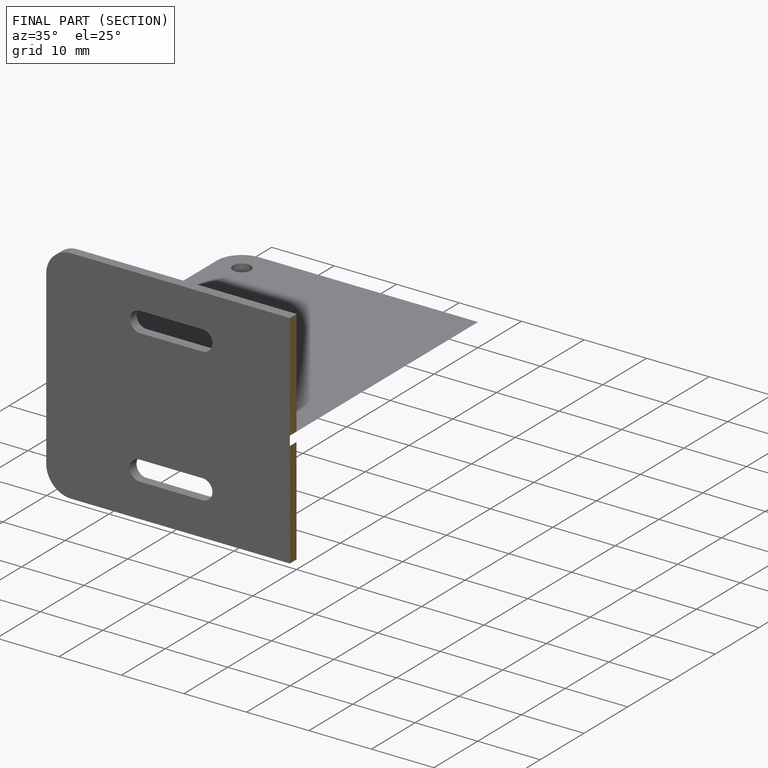
[diagram: finished part — half-section view (interior)]
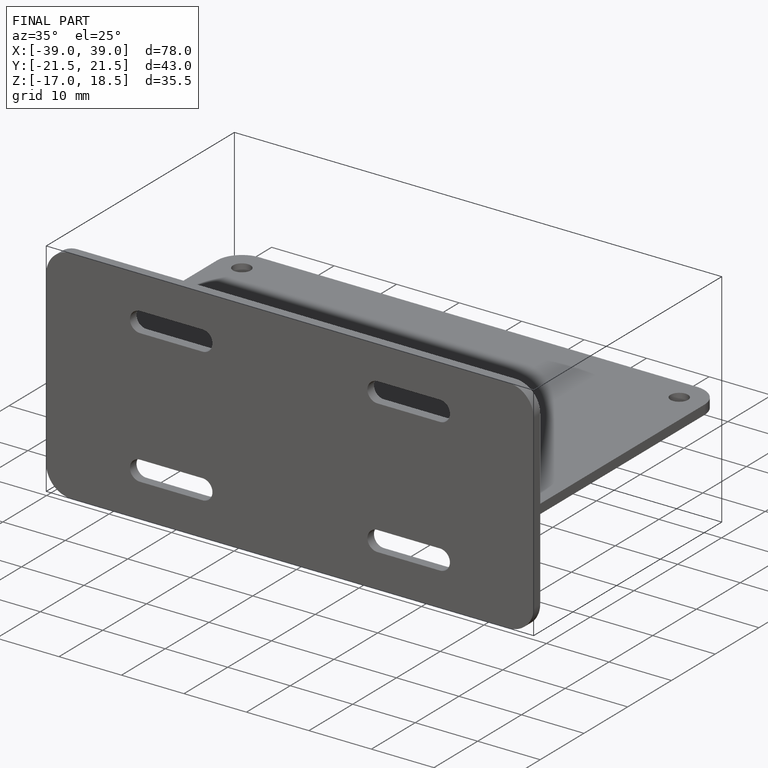
[diagram: finished part — iso view with bounding-box wireframe]
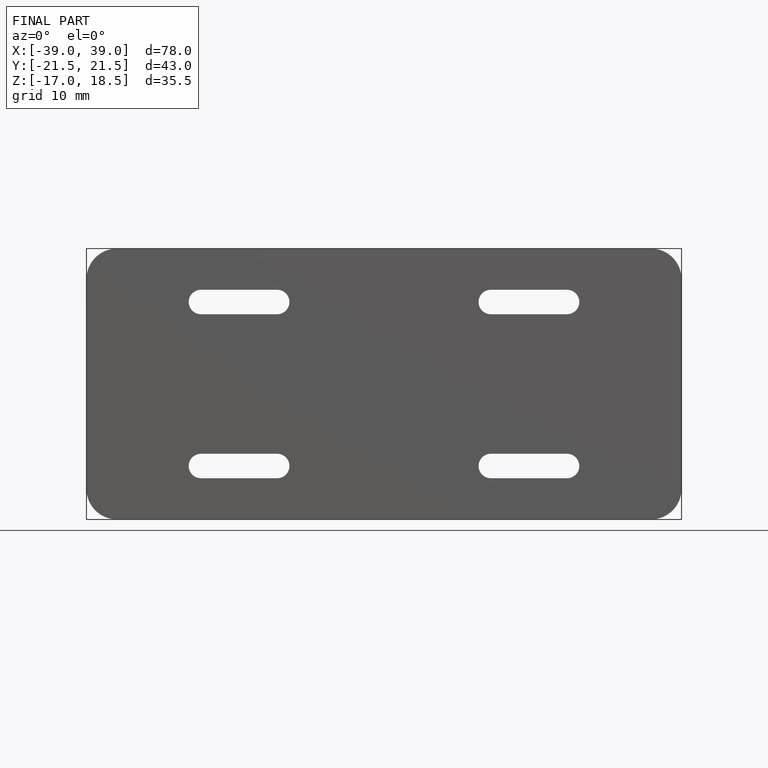
[diagram: finished part — front view with bounding-box wireframe]
